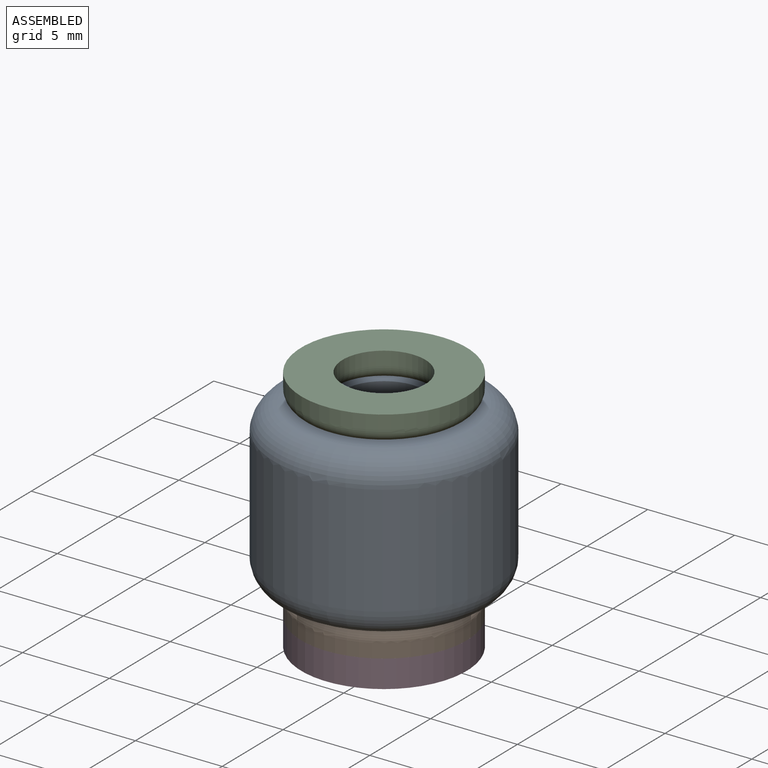
[diagram: assembled view]
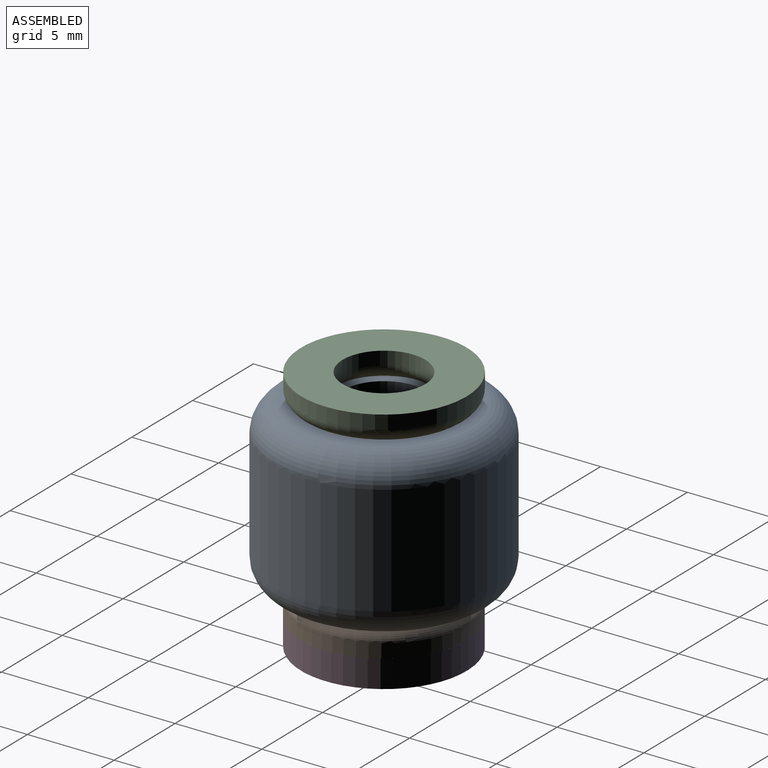
[diagram: assembled view, second angle]
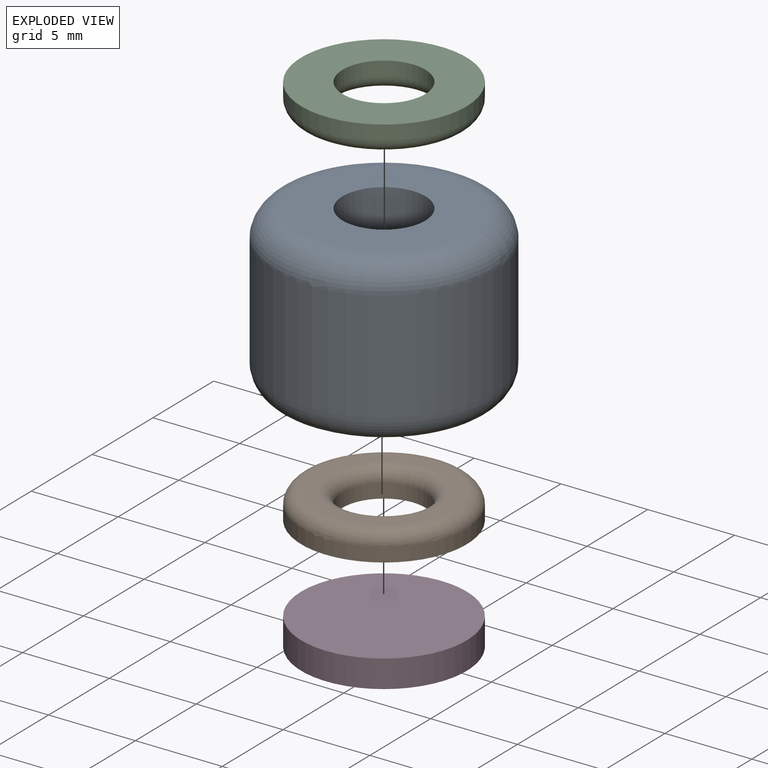
[diagram: exploded view]
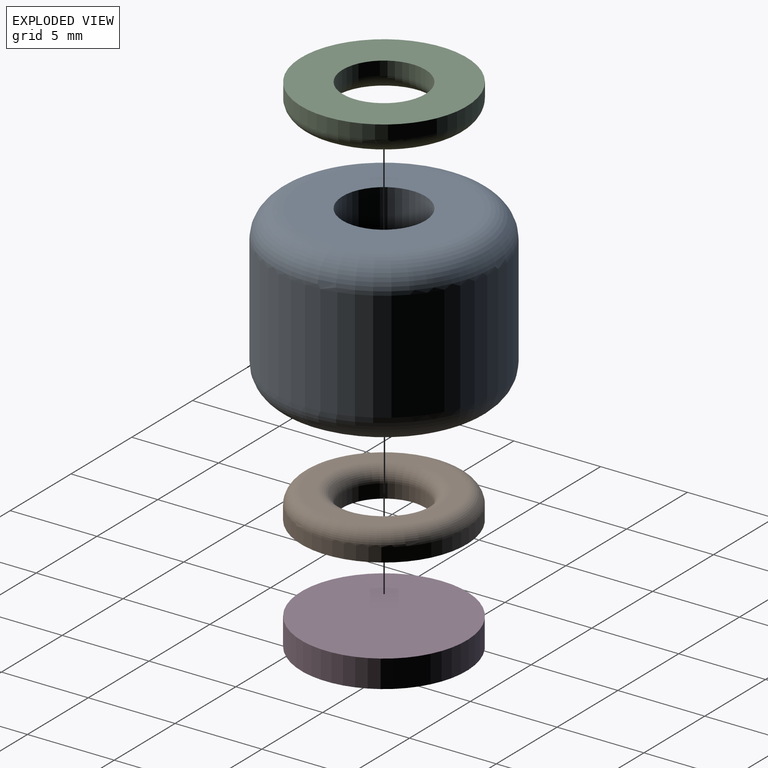
[diagram: exploded view, second angle]
ASSEMBLY  parts=4 mates=3
PART A: 6 faces, bbox 13.7x13.7x9.5 mm
  f0: cylinder r=2.38mm len=9.53mm, axis (0,0,1), area 142.5mm2, adj f2,f3
  f1: cylinder r=6.35mm len=12.7mm, axis (0,0,1), area 253.4mm2, adj f4,f5
  f2: plane 9.53x9.53mm, normal (0,0,-1), area 53.4mm2, adj f0,f5
  f3: plane 9.53x9.53mm, normal (0,0,1), area 53.4mm2, adj f0,f4
  f4: torus R=4.76mm, axis (0,0,-1), area 90.5mm2, adj f1,f3
  f5: torus R=4.76mm, axis (0,0,-1), area 90.5mm2, adj f1,f2
PART B: 6 faces, bbox 10.3x10.3x1.6 mm
  f0: cylinder r=2.38mm len=4.76mm, axis (0,0,-1), area 11.9mm2, adj f3,f4
  f1: cylinder r=4.76mm len=9.53mm, axis (0,0,-1), area 23.8mm2, adj f3,f5
  f2: plane 7.94x7.94mm, normal (0,0,1), area 17.8mm2, adj f4,f5
  f3: plane 9.53x9.53mm, normal (0,0,-1), area 53.4mm2, adj f0,f1
  f4: torus R=3.17mm, axis (0,0,1), area 20.9mm2, adj f0,f2
  f5: torus R=3.97mm, axis (0,0,1), area 35mm2, adj f1,f2
PART C: same geometry as B
PART D: 3 faces, bbox 9.5x9.5x1.6 mm
  f0: cylinder r=4.76mm len=9.53mm, axis (0,0,1), area 47.5mm2, adj f1,f2
  f1: plane 9.53x9.53mm, normal (0,0,-1), area 71.3mm2, adj f0
  f2: plane 9.53x9.53mm, normal (0,0,1), area 71.3mm2, adj f0
PLACE A rot(axis=(0.98,0.2,0),180deg) t=(-89.51,782.65,-70.83)mm
PLACE B rot(axis=(0,0,-1),157.5deg) t=(-1241.46,309.77,-46.01)mm
PLACE C rot(axis=(0.98,0.2,0),180deg) t=(-157.36,759.32,95.86)mm
PLACE D rot(axis=(1,0,0),180deg) t=(-11.65,554.65,-74.01)mm
MATE revolute B.f0 <-> A.f0  axis (0,0,1) through (-598.46,291.11,20.16)mm
MATE revolute D.f0 <-> B.f0  axis (0,0,1) through (-598.46,291.11,18.57)mm
MATE revolute A.f0 <-> C.f0  axis (0,0,1) through (-598.46,291.11,29.69)mm
